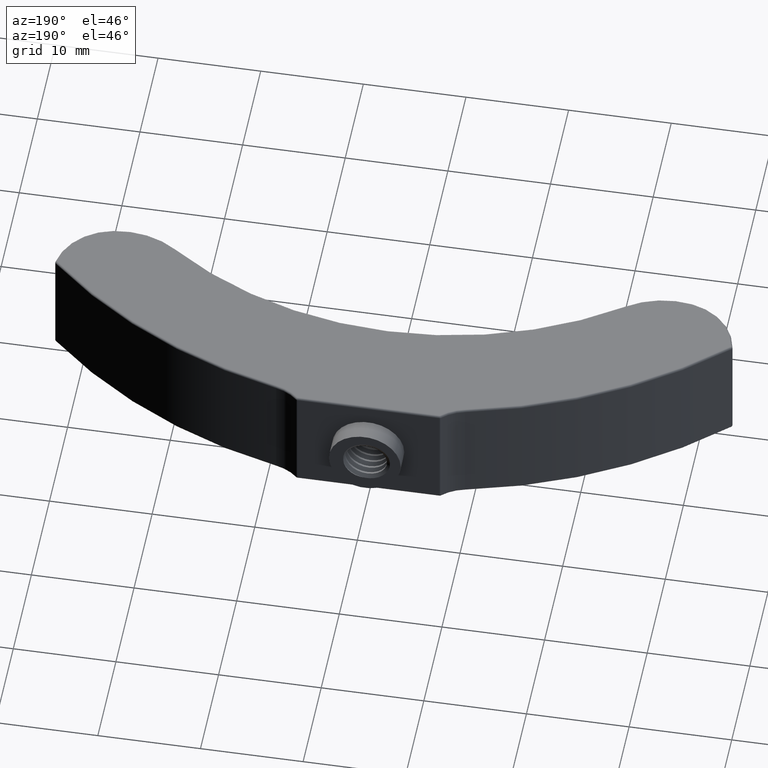
[diagram: clean part render]
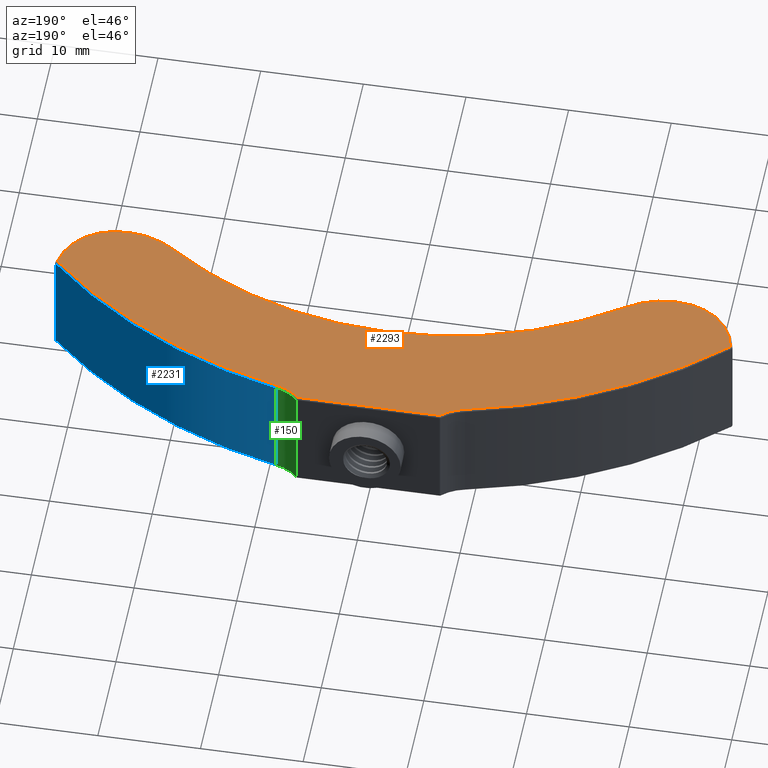
[diagram: same view with three faces highlighted in distinct colors, each labeled with its STEP entity id]
A machine part, auxiliary view with three faces highlighted in distinct colors.
Their STEP definitions:

[orange] entity #2293 — the highlighted planar face has unit normal (-0, 0, -1).
#3 = EDGE_CURVE ( 'NONE', #2545, #4765, #26, .T. ) ;
#17 = CARTESIAN_POINT ( 'NONE',  ( 22.04413669367827211, -13.62703820016905709, 11.00000000000000000 ) ) ;
#26 = LINE ( 'NONE', #1878, #1394 ) ;
#122 = VERTEX_POINT ( 'NONE', #4224 ) ;
#257 = CARTESIAN_POINT ( 'NONE',  ( 0.0000000000000000000, -43.59195163956391639, 11.00000000000000000 ) ) ;
#279 = CARTESIAN_POINT ( 'NONE',  ( -6.917744942252034512, 3.708048360436082991, 11.00000000000000000 ) ) ;
#381 = DIRECTION ( 'NONE',  ( 0.0000000000000000000, 0.0000000000000000000, 1.000000000000000000 ) ) ;
#384 = CIRCLE ( 'NONE', #920, 5.800000000000003375 ) ;
#401 = VERTEX_POINT ( 'NONE', #2054 ) ;
#518 = DIRECTION ( 'NONE',  ( -1.000000000000000000, 0.0000000000000000000, 0.0000000000000000000 ) ) ;
#547 = DIRECTION ( 'NONE',  ( 0.0000000000000000000, 0.0000000000000000000, 1.000000000000000000 ) ) ;
#617 = CARTESIAN_POINT ( 'NONE',  ( -10.19474337139716980, 7.077214621602229805, 11.00000000000000000 ) ) ;
#862 = CIRCLE ( 'NONE', #3615, 37.19999999999999574 ) ;
#885 = VERTEX_POINT ( 'NONE', #3806 ) ;
#889 = DIRECTION ( 'NONE',  ( 0.0000000000000000000, 0.0000000000000000000, 1.000000000000000000 ) ) ;
#906 = DIRECTION ( 'NONE',  ( -1.000000000000000000, 8.896017825522085641E-16, 0.0000000000000000000 ) ) ;
#914 = ORIENTED_EDGE ( 'NONE', *, *, #3108, .T. ) ;
#920 = AXIS2_PLACEMENT_3D ( 'NONE', #3667, #2117, #1749 ) ;
#1012 = CIRCLE ( 'NONE', #3601, 4.699999999999994849 ) ;
#1066 = DIRECTION ( 'NONE',  ( -1.000000000000000000, 1.239088197126290817E-16, 0.0000000000000000000 ) ) ;
#1099 = ORIENTED_EDGE ( 'NONE', *, *, #3593, .T. ) ;
#1124 = VERTEX_POINT ( 'NONE', #3757 ) ;
#1217 = CARTESIAN_POINT ( 'NONE',  ( -32.78769644247729786, -10.16533705068649951, 11.00000000000000000 ) ) ;
#1238 = VERTEX_POINT ( 'NONE', #1217 ) ;
#1314 = PLANE ( 'NONE',  #1727 ) ;
#1394 = VECTOR ( 'NONE', #1066, 1000.000000000000000 ) ;
#1594 = ORIENTED_EDGE ( 'NONE', *, *, #3651, .T. ) ;
#1636 = CARTESIAN_POINT ( 'NONE',  ( -10.19474337139716980, 7.077214621602229805, 11.00000000000000000 ) ) ;
#1709 = AXIS2_PLACEMENT_3D ( 'NONE', #3120, #1986, #906 ) ;
#1727 = AXIS2_PLACEMENT_3D ( 'NONE', #617, #2831, #518 ) ;
#1749 = DIRECTION ( 'NONE',  ( -1.000000000000000000, 0.0000000000000000000, 0.0000000000000000000 ) ) ;
#1775 = AXIS2_PLACEMENT_3D ( 'NONE', #3231, #4638, #2068 ) ;
#1787 = EDGE_LOOP ( 'NONE', ( #3629, #3833, #3876, #4742, #2285, #914, #1099, #2074, #2464, #1594 ) ) ;
#1804 = CIRCLE ( 'NONE', #2820, 4.699999999999995737 ) ;
#1878 = CARTESIAN_POINT ( 'NONE',  ( -10.19474337139716980, 3.708048360436082991, 11.00000000000000000 ) ) ;
#1986 = DIRECTION ( 'NONE',  ( 0.0000000000000000000, 0.0000000000000000000, 1.000000000000000000 ) ) ;
#2008 = DIRECTION ( 'NONE',  ( -1.000000000000000000, 0.0000000000000000000, 0.0000000000000000000 ) ) ;
#2031 = EDGE_CURVE ( 'NONE', #4765, #122, #1804, .T. ) ;
#2042 = DIRECTION ( 'NONE',  ( -1.000000000000000000, -2.647369160125247463E-15, 0.0000000000000000000 ) ) ;
#2054 = CARTESIAN_POINT ( 'NONE',  ( -28.16906355592864486, -14.99793979079398909, 11.00000000000000000 ) ) ;
#2060 = EDGE_CURVE ( 'NONE', #3810, #3961, #862, .T. ) ;
#2068 = DIRECTION ( 'NONE',  ( -1.000000000000000000, 0.0000000000000000000, 0.0000000000000000000 ) ) ;
#2074 = ORIENTED_EDGE ( 'NONE', *, *, #2060, .T. ) ;
#2117 = DIRECTION ( 'NONE',  ( 0.0000000000000000000, 0.0000000000000000000, 1.000000000000000000 ) ) ;
#2251 = DIRECTION ( 'NONE',  ( -1.000000000000000000, -3.483380473849009861E-15, 0.0000000000000000000 ) ) ;
#2285 = ORIENTED_EDGE ( 'NONE', *, *, #2635, .T. ) ;
#2293 = ADVANCED_FACE ( 'NONE', ( #2755 ), #1314, .F. ) ;
#2324 = CARTESIAN_POINT ( 'NONE',  ( -1.675373897850213734, -46.11442302957668460, 11.00000000000000000 ) ) ;
#2396 = DIRECTION ( 'NONE',  ( -0.0000000000000000000, -0.0000000000000000000, -1.000000000000000000 ) ) ;
#2402 = CARTESIAN_POINT ( 'NONE',  ( 10.19474337139716980, 7.077214621602229805, 11.00000000000000000 ) ) ;
#2408 = CARTESIAN_POINT ( 'NONE',  ( 6.917744942252036289, 3.708048360436080770, 11.00000000000000000 ) ) ;
#2455 = CARTESIAN_POINT ( 'NONE',  ( 27.05161981531265880, -9.306602558951354354, 11.00000000000000000 ) ) ;
#2464 = ORIENTED_EDGE ( 'NONE', *, *, #2567, .T. ) ;
#2545 = VERTEX_POINT ( 'NONE', #2408 ) ;
#2567 = EDGE_CURVE ( 'NONE', #3961, #3387, #2884, .T. ) ;
#2635 = EDGE_CURVE ( 'NONE', #122, #1238, #4519, .T. ) ;
#2660 = CARTESIAN_POINT ( 'NONE',  ( 28.16906355592864841, -14.99793979079398554, 11.00000000000000000 ) ) ;
#2755 = FACE_OUTER_BOUND ( 'NONE', #1787, .T. ) ;
#2811 = CARTESIAN_POINT ( 'NONE',  ( 1.675373897850213734, -46.11442302957668460, 11.00000000000000000 ) ) ;
#2820 = AXIS2_PLACEMENT_3D ( 'NONE', #1636, #3507, #2008 ) ;
#2822 = CIRCLE ( 'NONE', #1709, 7.800000000000001599 ) ;
#2831 = DIRECTION ( 'NONE',  ( -0.0000000000000000000, 0.0000000000000000000, -1.000000000000000000 ) ) ;
#2884 = CIRCLE ( 'NONE', #1775, 7.799999999999998046 ) ;
#3108 = EDGE_CURVE ( 'NONE', #1238, #401, #384, .T. ) ;
#3120 = CARTESIAN_POINT ( 'NONE',  ( -26.66629438751404280, -7.344072479005620657, 11.00000000000000000 ) ) ;
#3144 = DIRECTION ( 'NONE',  ( -1.000000000000000000, 0.0000000000000000000, 0.0000000000000000000 ) ) ;
#3231 = CARTESIAN_POINT ( 'NONE',  ( 26.66629438751404280, -7.344072479005620657, 11.00000000000000000 ) ) ;
#3387 = VERTEX_POINT ( 'NONE', #2660 ) ;
#3507 = DIRECTION ( 'NONE',  ( -0.0000000000000000000, -0.0000000000000000000, -1.000000000000000000 ) ) ;
#3539 = DIRECTION ( 'NONE',  ( -1.000000000000000000, 0.0000000000000000000, 0.0000000000000000000 ) ) ;
#3593 = EDGE_CURVE ( 'NONE', #401, #3810, #2822, .T. ) ;
#3601 = AXIS2_PLACEMENT_3D ( 'NONE', #2402, #3898, #4243 ) ;
#3615 = AXIS2_PLACEMENT_3D ( 'NONE', #257, #2396, #3144 ) ;
#3625 = EDGE_CURVE ( 'NONE', #1124, #2545, #1012, .T. ) ;
#3629 = ORIENTED_EDGE ( 'NONE', *, *, #4160, .T. ) ;
#3651 = EDGE_CURVE ( 'NONE', #3387, #885, #3755, .T. ) ;
#3664 = CARTESIAN_POINT ( 'NONE',  ( -22.04413669367826856, -13.62703820016905709, 11.00000000000000000 ) ) ;
#3667 = CARTESIAN_POINT ( 'NONE',  ( -27.05161981531265880, -9.306602558951354354, 11.00000000000000000 ) ) ;
#3755 = CIRCLE ( 'NONE', #4378, 5.800000000000003375 ) ;
#3757 = CARTESIAN_POINT ( 'NONE',  ( 9.171081882122626538, 2.490045870032690178, 11.00000000000000000 ) ) ;
#3806 = CARTESIAN_POINT ( 'NONE',  ( 32.78769644247729786, -10.16533705068649951, 11.00000000000000000 ) ) ;
#3810 = VERTEX_POINT ( 'NONE', #3664 ) ;
#3833 = ORIENTED_EDGE ( 'NONE', *, *, #3625, .T. ) ;
#3839 = CIRCLE ( 'NONE', #3995, 49.80000000000000426 ) ;
#3876 = ORIENTED_EDGE ( 'NONE', *, *, #3, .T. ) ;
#3898 = DIRECTION ( 'NONE',  ( -0.0000000000000000000, -0.0000000000000000000, -1.000000000000000000 ) ) ;
#3961 = VERTEX_POINT ( 'NONE', #17 ) ;
#3995 = AXIS2_PLACEMENT_3D ( 'NONE', #2324, #381, #2251 ) ;
#4160 = EDGE_CURVE ( 'NONE', #885, #1124, #3839, .T. ) ;
#4224 = CARTESIAN_POINT ( 'NONE',  ( -9.171081882122619433, 2.490045870032685293, 11.00000000000000000 ) ) ;
#4243 = DIRECTION ( 'NONE',  ( -1.000000000000000000, 0.0000000000000000000, 0.0000000000000000000 ) ) ;
#4378 = AXIS2_PLACEMENT_3D ( 'NONE', #2455, #547, #3539 ) ;
#4519 = CIRCLE ( 'NONE', #4590, 49.80000000000000426 ) ;
#4590 = AXIS2_PLACEMENT_3D ( 'NONE', #2811, #889, #2042 ) ;
#4638 = DIRECTION ( 'NONE',  ( 0.0000000000000000000, 0.0000000000000000000, 1.000000000000000000 ) ) ;
#4742 = ORIENTED_EDGE ( 'NONE', *, *, #2031, .T. ) ;
#4765 = VERTEX_POINT ( 'NONE', #279 ) ;

[blue] entity #2231 — the highlighted cylindrical surface (partial cylindrical patch) has radius 50 mm, axis along (-0, -0, -1).
#204 = CYLINDRICAL_SURFACE ( 'NONE', #1102, 50.00000000000000000 ) ;
#241 = CARTESIAN_POINT ( 'NONE',  ( 9.214641945496007125, 2.685244540312232253, 11.00000000000000000 ) ) ;
#260 = CARTESIAN_POINT ( 'NONE',  ( -1.675373897850213734, -46.11442302957668460, 0.2000000000000005107 ) ) ;
#378 = VECTOR ( 'NONE', #4687, 1000.000000000000000 ) ;
#551 = VERTEX_POINT ( 'NONE', #856 ) ;
#592 = DIRECTION ( 'NONE',  ( -1.000000000000000000, 0.0000000000000000000, 0.0000000000000000000 ) ) ;
#621 = DIRECTION ( 'NONE',  ( 0.0000000000000000000, 0.0000000000000000000, 1.000000000000000000 ) ) ;
#754 = VERTEX_POINT ( 'NONE', #4317 ) ;
#839 = VECTOR ( 'NONE', #4388, 1000.000000000000000 ) ;
#856 = CARTESIAN_POINT ( 'NONE',  ( 32.92610234745851017, -10.02096321141382518, 0.2000000000000005107 ) ) ;
#1038 = DIRECTION ( 'NONE',  ( -0.0000000000000000000, -0.0000000000000000000, -1.000000000000000000 ) ) ;
#1102 = AXIS2_PLACEMENT_3D ( 'NONE', #1685, #3194, #592 ) ;
#1104 = LINE ( 'NONE', #3318, #839 ) ;
#1112 = DIRECTION ( 'NONE',  ( -1.000000000000000000, 0.0000000000000000000, 0.0000000000000000000 ) ) ;
#1278 = LINE ( 'NONE', #241, #378 ) ;
#1316 = CIRCLE ( 'NONE', #2739, 50.00000000000000000 ) ;
#1669 = VERTEX_POINT ( 'NONE', #4269 ) ;
#1685 = CARTESIAN_POINT ( 'NONE',  ( -1.675373897850213734, -46.11442302957668460, 11.00000000000000000 ) ) ;
#1796 = CARTESIAN_POINT ( 'NONE',  ( -1.675373897850213734, -46.11442302957668460, 10.79999999999999893 ) ) ;
#1931 = ORIENTED_EDGE ( 'NONE', *, *, #2967, .T. ) ;
#2231 = ADVANCED_FACE ( 'NONE', ( #3560 ), #204, .T. ) ;
#2472 = EDGE_CURVE ( 'NONE', #2626, #551, #1104, .T. ) ;
#2530 = ORIENTED_EDGE ( 'NONE', *, *, #2608, .F. ) ;
#2608 = EDGE_CURVE ( 'NONE', #754, #1669, #1278, .T. ) ;
#2626 = VERTEX_POINT ( 'NONE', #4275 ) ;
#2650 = CIRCLE ( 'NONE', #3276, 50.00000000000000000 ) ;
#2739 = AXIS2_PLACEMENT_3D ( 'NONE', #260, #621, #3641 ) ;
#2967 = EDGE_CURVE ( 'NONE', #754, #2626, #2650, .T. ) ;
#3194 = DIRECTION ( 'NONE',  ( -0.0000000000000000000, -0.0000000000000000000, -1.000000000000000000 ) ) ;
#3276 = AXIS2_PLACEMENT_3D ( 'NONE', #1796, #1038, #1112 ) ;
#3318 = CARTESIAN_POINT ( 'NONE',  ( 32.92610234745851017, -10.02096321141382518, 11.00000000000000000 ) ) ;
#3430 = ORIENTED_EDGE ( 'NONE', *, *, #2472, .T. ) ;
#3560 = FACE_OUTER_BOUND ( 'NONE', #4040, .T. ) ;
#3641 = DIRECTION ( 'NONE',  ( -1.000000000000000000, -1.804112415015879378E-15, 0.0000000000000000000 ) ) ;
#3778 = EDGE_CURVE ( 'NONE', #551, #1669, #1316, .T. ) ;
#4040 = EDGE_LOOP ( 'NONE', ( #2530, #1931, #3430, #4457 ) ) ;
#4269 = CARTESIAN_POINT ( 'NONE',  ( 9.214641945496007125, 2.685244540312232253, 0.2000000000000005107 ) ) ;
#4275 = CARTESIAN_POINT ( 'NONE',  ( 32.92610234745851017, -10.02096321141382518, 10.79999999999999893 ) ) ;
#4317 = CARTESIAN_POINT ( 'NONE',  ( 9.214641945496007125, 2.685244540312232253, 10.79999999999999893 ) ) ;
#4388 = DIRECTION ( 'NONE',  ( -0.0000000000000000000, -0.0000000000000000000, -1.000000000000000000 ) ) ;
#4457 = ORIENTED_EDGE ( 'NONE', *, *, #3778, .T. ) ;
#4687 = DIRECTION ( 'NONE',  ( -0.0000000000000000000, -0.0000000000000000000, -1.000000000000000000 ) ) ;

[green] entity #150 — the highlighted cylindrical surface (partial cylindrical patch) has radius 4.5 mm, axis along (-0, -0, -1).
#150 = ADVANCED_FACE ( 'NONE', ( #2784 ), #2041, .F. ) ;
#213 = DIRECTION ( 'NONE',  ( 0.0000000000000000000, 0.0000000000000000000, 1.000000000000000000 ) ) ;
#241 = CARTESIAN_POINT ( 'NONE',  ( 9.214641945496007125, 2.685244540312232253, 11.00000000000000000 ) ) ;
#378 = VECTOR ( 'NONE', #4687, 1000.000000000000000 ) ;
#754 = VERTEX_POINT ( 'NONE', #4317 ) ;
#845 = DIRECTION ( 'NONE',  ( -0.0000000000000000000, -0.0000000000000000000, -1.000000000000000000 ) ) ;
#1274 = CARTESIAN_POINT ( 'NONE',  ( 7.057191683917786840, 3.851417137506981003, 10.79999999999999893 ) ) ;
#1278 = LINE ( 'NONE', #241, #378 ) ;
#1364 = EDGE_CURVE ( 'NONE', #1669, #4288, #4686, .T. ) ;
#1503 = VERTEX_POINT ( 'NONE', #1274 ) ;
#1634 = AXIS2_PLACEMENT_3D ( 'NONE', #1969, #845, #4589 ) ;
#1644 = DIRECTION ( 'NONE',  ( 0.0000000000000000000, 0.0000000000000000000, 1.000000000000000000 ) ) ;
#1669 = VERTEX_POINT ( 'NONE', #4269 ) ;
#1969 = CARTESIAN_POINT ( 'NONE',  ( 10.19474337139716980, 7.077214621602229805, 11.00000000000000000 ) ) ;
#2041 = CYLINDRICAL_SURFACE ( 'NONE', #1634, 4.499999999999995559 ) ;
#2097 = DIRECTION ( 'NONE',  ( -1.000000000000000000, 0.0000000000000000000, 0.0000000000000000000 ) ) ;
#2362 = ORIENTED_EDGE ( 'NONE', *, *, #2608, .T. ) ;
#2440 = CARTESIAN_POINT ( 'NONE',  ( 10.19474337139716980, 7.077214621602229805, 0.2000000000000005107 ) ) ;
#2542 = EDGE_CURVE ( 'NONE', #4288, #1503, #4250, .T. ) ;
#2608 = EDGE_CURVE ( 'NONE', #754, #1669, #1278, .T. ) ;
#2753 = EDGE_CURVE ( 'NONE', #1503, #754, #3040, .T. ) ;
#2784 = FACE_OUTER_BOUND ( 'NONE', #4319, .T. ) ;
#2868 = DIRECTION ( 'NONE',  ( -0.0000000000000000000, -0.0000000000000000000, -1.000000000000000000 ) ) ;
#2956 = VECTOR ( 'NONE', #1644, 1000.000000000000000 ) ;
#2992 = ORIENTED_EDGE ( 'NONE', *, *, #1364, .T. ) ;
#3040 = CIRCLE ( 'NONE', #4750, 4.499999999999995559 ) ;
#3215 = AXIS2_PLACEMENT_3D ( 'NONE', #2440, #2868, #2097 ) ;
#3227 = ORIENTED_EDGE ( 'NONE', *, *, #2542, .T. ) ;
#3403 = ORIENTED_EDGE ( 'NONE', *, *, #2753, .T. ) ;
#3569 = CARTESIAN_POINT ( 'NONE',  ( 10.19474337139716980, 7.077214621602229805, 10.79999999999999893 ) ) ;
#3733 = CARTESIAN_POINT ( 'NONE',  ( 7.057191683917786840, 3.851417137506981003, 0.2000000000000005107 ) ) ;
#3878 = CARTESIAN_POINT ( 'NONE',  ( 7.057191683917785952, 3.851417137506980559, 11.00000000000000000 ) ) ;
#4250 = LINE ( 'NONE', #3878, #2956 ) ;
#4269 = CARTESIAN_POINT ( 'NONE',  ( 9.214641945496007125, 2.685244540312232253, 0.2000000000000005107 ) ) ;
#4288 = VERTEX_POINT ( 'NONE', #3733 ) ;
#4317 = CARTESIAN_POINT ( 'NONE',  ( 9.214641945496007125, 2.685244540312232253, 10.79999999999999893 ) ) ;
#4319 = EDGE_LOOP ( 'NONE', ( #3227, #3403, #2362, #2992 ) ) ;
#4323 = DIRECTION ( 'NONE',  ( -1.000000000000000000, 0.0000000000000000000, 0.0000000000000000000 ) ) ;
#4589 = DIRECTION ( 'NONE',  ( -1.000000000000000000, 0.0000000000000000000, 0.0000000000000000000 ) ) ;
#4686 = CIRCLE ( 'NONE', #3215, 4.499999999999995559 ) ;
#4687 = DIRECTION ( 'NONE',  ( -0.0000000000000000000, -0.0000000000000000000, -1.000000000000000000 ) ) ;
#4750 = AXIS2_PLACEMENT_3D ( 'NONE', #3569, #213, #4323 ) ;